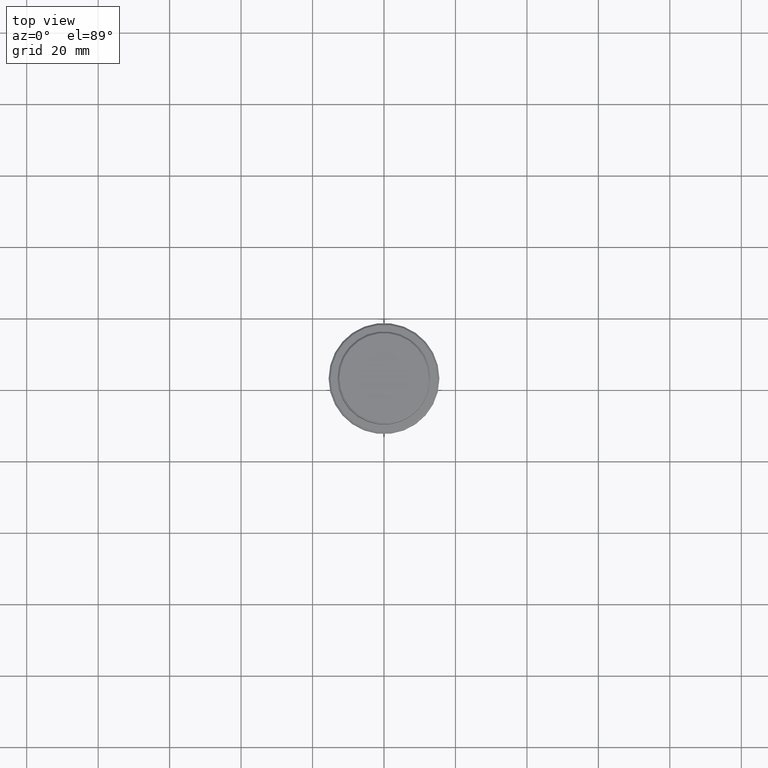
[diagram: clean part render]
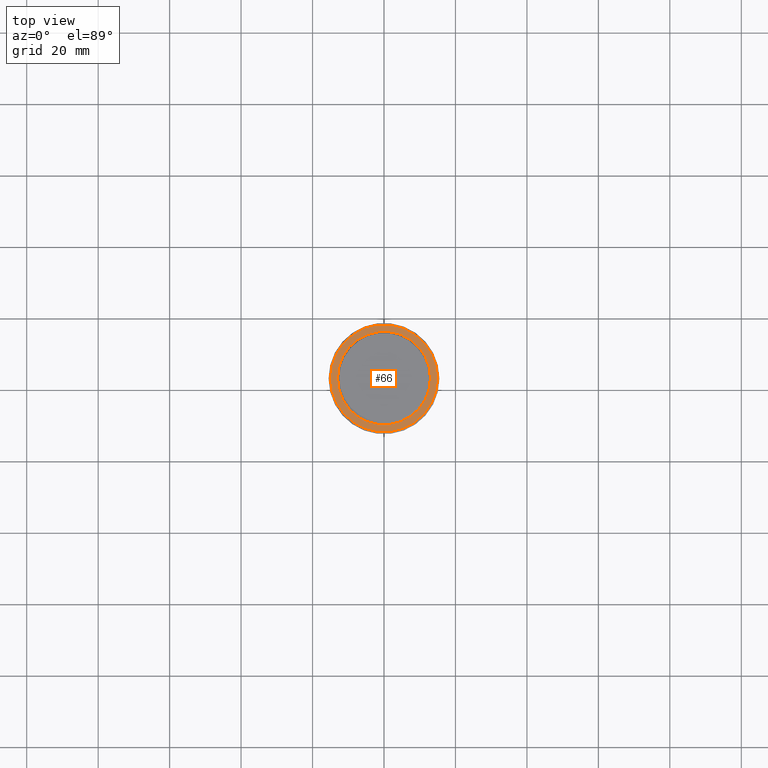
[diagram: same view with one face highlighted and labeled with its STEP entity id]
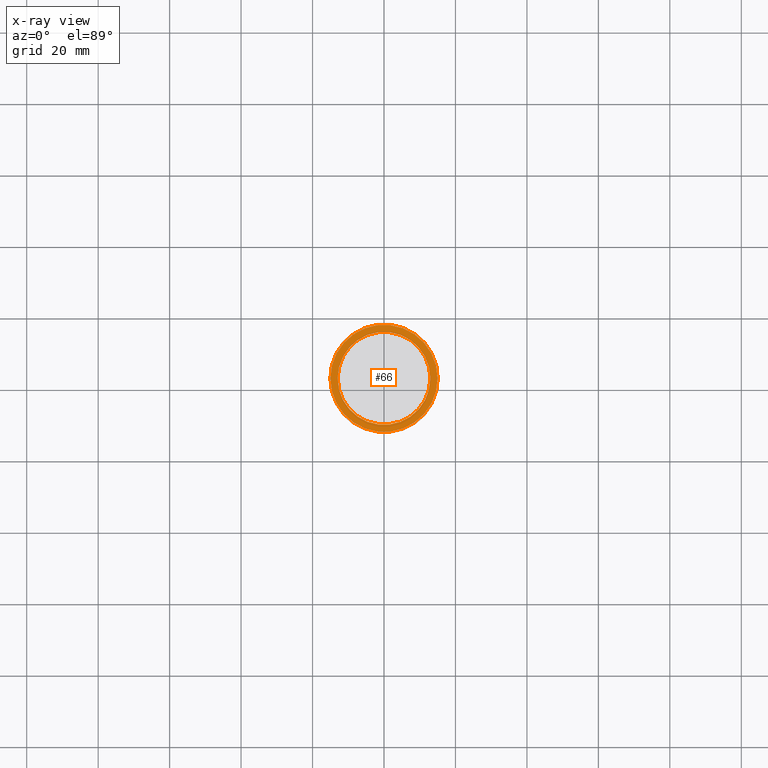
[diagram: x-ray of the same camera — body ghosted, the highlighted face saturated]
A machine part, top view. The second image highlights one B-rep face of the part: STEP entity #66.
The next image is the same camera in x-ray: the body ghosted, the highlighted face saturated — about 0% of this face is hidden behind the body in this view.
In plain terms, the highlighted planar face has unit normal (0, -0, 1).
Its self-contained STEP definition (entity closure, byte-faithful):
#55 = AXIS2_PLACEMENT_3D ( 'NONE', #277, #156, #822 ) ;
#66 = ADVANCED_FACE ( 'NONE', ( #1151, #364 ), #912, .T. ) ;
#75 = CIRCLE ( 'NONE', #55, 15.00000000000001421 ) ;
#80 = EDGE_LOOP ( 'NONE', ( #1304, #746 ) ) ;
#104 = EDGE_CURVE ( 'NONE', #1293, #1301, #326, .T. ) ;
#113 = EDGE_LOOP ( 'NONE', ( #599, #702 ) ) ;
#156 = DIRECTION ( 'NONE',  ( -0.000000000000000000, -0.000000000000000000, 1.000000000000000000 ) ) ;
#208 = EDGE_CURVE ( 'NONE', #334, #563, #392, .T. ) ;
#254 = CARTESIAN_POINT ( 'NONE',  ( 0.000000000000000000, 0.000000000000000000, -9.000000000000001776 ) ) ;
#268 = CARTESIAN_POINT ( 'NONE',  ( 0.000000000000000000, 12.49999999999999289, -9.000000000000001776 ) ) ;
#277 = CARTESIAN_POINT ( 'NONE',  ( 0.000000000000000000, 0.000000000000000000, -9.000000000000001776 ) ) ;
#293 = DIRECTION ( 'NONE',  ( 0.000000000000000000, 0.000000000000000000, -1.000000000000000000 ) ) ;
#326 = CIRCLE ( 'NONE', #390, 15.00000000000001421 ) ;
#334 = VERTEX_POINT ( 'NONE', #988 ) ;
#364 = FACE_BOUND ( 'NONE', #113, .T. ) ;
#390 = AXIS2_PLACEMENT_3D ( 'NONE', #254, #1015, #812 ) ;
#392 = CIRCLE ( 'NONE', #462, 12.99999999999999467 ) ;
#462 = AXIS2_PLACEMENT_3D ( 'NONE', #744, #293, #1384 ) ;
#498 = EDGE_CURVE ( 'NONE', #1301, #1293, #75, .T. ) ;
#563 = VERTEX_POINT ( 'NONE', #595 ) ;
#595 = CARTESIAN_POINT ( 'NONE',  ( -12.99999999999999467, 1.592040838891558504E-15, -9.000000000000001776 ) ) ;
#599 = ORIENTED_EDGE ( 'NONE', *, *, #208, .T. ) ;
#621 = CARTESIAN_POINT ( 'NONE',  ( 0.000000000000000000, 0.000000000000000000, -9.000000000000001776 ) ) ;
#643 = CIRCLE ( 'NONE', #948, 12.99999999999999467 ) ;
#648 = CARTESIAN_POINT ( 'NONE',  ( 15.00000000000001421, 1.867586368699714559E-15, -9.000000000000001776 ) ) ;
#702 = ORIENTED_EDGE ( 'NONE', *, *, #706, .T. ) ;
#706 = EDGE_CURVE ( 'NONE', #563, #334, #643, .T. ) ;
#738 = DIRECTION ( 'NONE',  ( 1.000000000000000000, 0.000000000000000000, 0.000000000000000000 ) ) ;
#744 = CARTESIAN_POINT ( 'NONE',  ( 0.000000000000000000, 0.000000000000000000, -9.000000000000001776 ) ) ;
#746 = ORIENTED_EDGE ( 'NONE', *, *, #104, .T. ) ;
#812 = DIRECTION ( 'NONE',  ( 1.000000000000000000, 0.000000000000000000, 0.000000000000000000 ) ) ;
#822 = DIRECTION ( 'NONE',  ( 1.000000000000000000, 0.000000000000000000, 0.000000000000000000 ) ) ;
#912 = PLANE ( 'NONE',  #1037 ) ;
#948 = AXIS2_PLACEMENT_3D ( 'NONE', #621, #1195, #738 ) ;
#988 = CARTESIAN_POINT ( 'NONE',  ( 12.99999999999999467, 0.000000000000000000, -9.000000000000001776 ) ) ;
#1015 = DIRECTION ( 'NONE',  ( -0.000000000000000000, -0.000000000000000000, 1.000000000000000000 ) ) ;
#1032 = DIRECTION ( 'NONE',  ( 1.000000000000000000, 0.000000000000000000, 0.000000000000000000 ) ) ;
#1037 = AXIS2_PLACEMENT_3D ( 'NONE', #268, #1131, #1032 ) ;
#1131 = DIRECTION ( 'NONE',  ( 0.000000000000000000, -0.000000000000000000, 1.000000000000000000 ) ) ;
#1151 = FACE_OUTER_BOUND ( 'NONE', #80, .T. ) ;
#1195 = DIRECTION ( 'NONE',  ( 0.000000000000000000, 0.000000000000000000, -1.000000000000000000 ) ) ;
#1215 = CARTESIAN_POINT ( 'NONE',  ( -15.00000000000001421, 0.000000000000000000, -9.000000000000001776 ) ) ;
#1293 = VERTEX_POINT ( 'NONE', #648 ) ;
#1301 = VERTEX_POINT ( 'NONE', #1215 ) ;
#1304 = ORIENTED_EDGE ( 'NONE', *, *, #498, .T. ) ;
#1384 = DIRECTION ( 'NONE',  ( 1.000000000000000000, 0.000000000000000000, 0.000000000000000000 ) ) ;